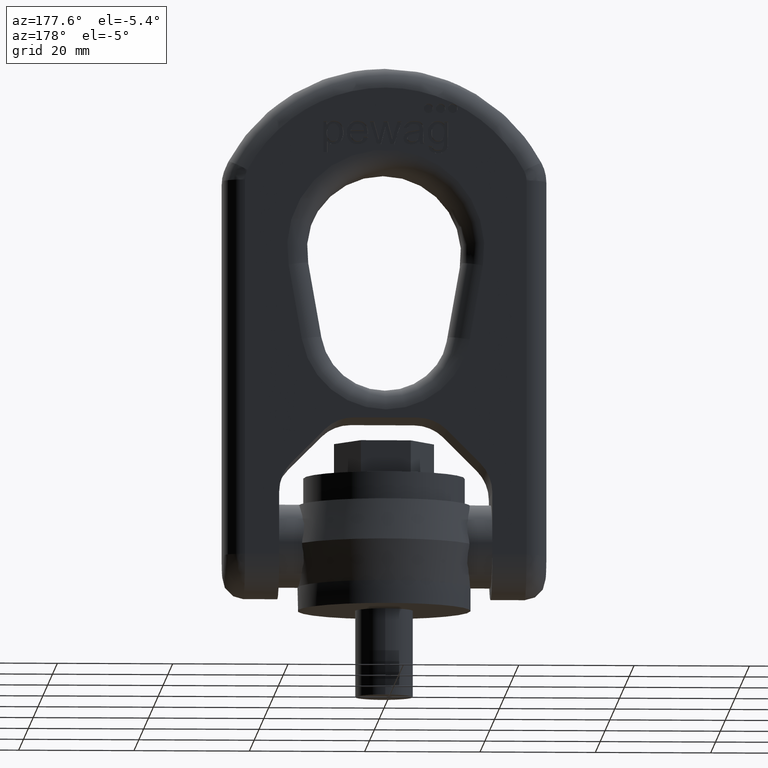
[diagram: clean part render]
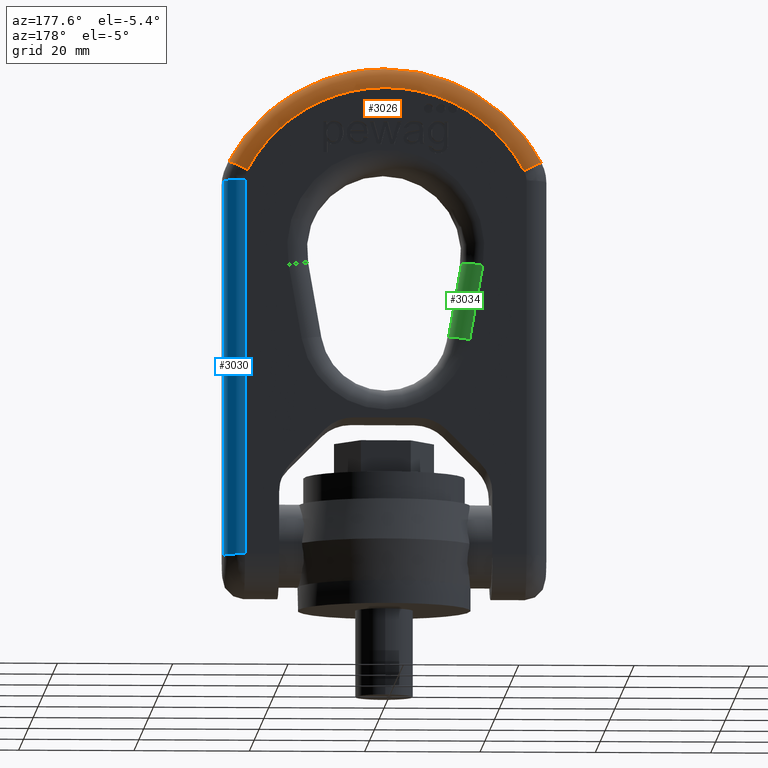
[diagram: same view with three faces highlighted in distinct colors, each labeled with its STEP entity id]
A machine part, auxiliary view with three faces highlighted in distinct colors.
Their STEP definitions:

[orange] entity #3026 — the highlighted toroidal blend (fillet) surface has major radius 27.1778 mm and minor (blend) radius 3.6 mm.
#202=TOROIDAL_SURFACE('',#6041,27.1777777777778,3.6);
#2651=FACE_OUTER_BOUND('',#3419,.T.);
#3026=ADVANCED_FACE('',(#2651),#202,.T.);
#3419=EDGE_LOOP('',(#4641,#4642,#4643,#4644));
#4641=ORIENTED_EDGE('',*,*,#5734,.T.);
#4642=ORIENTED_EDGE('',*,*,#5369,.F.);
#4643=ORIENTED_EDGE('',*,*,#5736,.F.);
#4644=ORIENTED_EDGE('',*,*,#5280,.F.);
#4831=VERTEX_POINT('',#7404);
#4841=VERTEX_POINT('',#7426);
#4928=VERTEX_POINT('',#7762);
#4929=VERTEX_POINT('',#7764);
#5280=EDGE_CURVE('',#4841,#4831,#5783,.T.);
#5369=EDGE_CURVE('',#4928,#4929,#5791,.T.);
#5734=EDGE_CURVE('',#4841,#4929,#5812,.T.);
#5736=EDGE_CURVE('',#4831,#4928,#5814,.T.);
#5783=CIRCLE('',#5890,27.1777777777778);
#5791=CIRCLE('',#5904,30.7777777777778);
#5812=CIRCLE('',#6037,3.6);
#5814=CIRCLE('',#6040,3.6);
#5890=AXIS2_PLACEMENT_3D('',#7427,#6285,#6286);
#5904=AXIS2_PLACEMENT_3D('',#7763,#6360,#6361);
#6037=AXIS2_PLACEMENT_3D('',#9754,#6882,#6883);
#6040=AXIS2_PLACEMENT_3D('',#9773,#6888,#6889);
#6041=AXIS2_PLACEMENT_3D('',#9774,#6890,#6891);
#6285=DIRECTION('',(2.34291072916505E-15,1.,0.));
#6286=DIRECTION('',(-1.,2.32974923081922E-15,0.));
#6360=DIRECTION('',(-2.34291072916505E-15,-1.,0.));
#6361=DIRECTION('',(-1.,2.33905854973768E-15,0.));
#6882=DIRECTION('',(0.470899961611151,-9.07645798048268E-16,0.882186616399623));
#6883=DIRECTION('',(0.882186616399624,0.,-0.470899961611152));
#6888=DIRECTION('',(0.470899961611152,-9.07645798048269E-16,-0.882186616399623));
#6889=DIRECTION('',(-0.882186616399623,0.,-0.470899961611152));
#6890=DIRECTION('',(2.34291072916505E-15,1.,0.));
#6891=DIRECTION('',(-1.,2.33905854973768E-15,0.));
#7404=CARTESIAN_POINT('',(23.9758718190387,7.19999999999994,76.0202367344542));
#7426=CARTESIAN_POINT('',(-23.9758718190386,7.20000000000006,76.0202367344542));
#7427=CARTESIAN_POINT('',(8.43447862499418E-15,7.2,63.2222222222222));
#7762=CARTESIAN_POINT('',(27.1517436380773,3.59999999999993,77.7154765962543));
#7763=CARTESIAN_POINT('',(0.,3.59999999999999,63.2222222222222));
#7764=CARTESIAN_POINT('',(-27.1517436380773,3.60000000000006,77.7154765962543));
#9754=CARTESIAN_POINT('',(-23.9758718190386,3.60000000000006,76.0202367344542));
#9773=CARTESIAN_POINT('',(23.9758718190387,3.59999999999994,76.0202367344542));
#9774=CARTESIAN_POINT('',(0.,3.6,63.2222222222222));

[blue] entity #3030 — the highlighted cylindrical surface (edge-blend (fillet) strip) has radius 3.6 mm, axis along (-0, 0, 1).
#1817=LINE('',#7406,#2125);
#1867=LINE('',#7754,#2175);
#2125=VECTOR('',#6268,1.);
#2175=VECTOR('',#6354,1.);
#2655=FACE_OUTER_BOUND('',#3423,.T.);
#3030=ADVANCED_FACE('',(#2655),#3064,.T.);
#3064=CYLINDRICAL_SURFACE('',#6047,3.6);
#3423=EDGE_LOOP('',(#4657,#4658,#4659,#4660));
#4657=ORIENTED_EDGE('',*,*,#5738,.T.);
#4658=ORIENTED_EDGE('',*,*,#5365,.F.);
#4659=ORIENTED_EDGE('',*,*,#5740,.F.);
#4660=ORIENTED_EDGE('',*,*,#5268,.F.);
#4741=VERTEX_POINT('',#7064);
#4832=VERTEX_POINT('',#7405);
#4924=VERTEX_POINT('',#7753);
#4925=VERTEX_POINT('',#7755);
#5268=EDGE_CURVE('',#4832,#4741,#1817,.T.);
#5365=EDGE_CURVE('',#4924,#4925,#1867,.T.);
#5738=EDGE_CURVE('',#4832,#4925,#5816,.T.);
#5740=EDGE_CURVE('',#4741,#4924,#5818,.T.);
#5816=CIRCLE('',#6043,3.6);
#5818=CIRCLE('',#6046,3.6);
#6043=AXIS2_PLACEMENT_3D('',#9792,#6894,#6895);
#6046=AXIS2_PLACEMENT_3D('',#9811,#6900,#6901);
#6047=AXIS2_PLACEMENT_3D('',#9812,#6902,#6903);
#6268=DIRECTION('',(1.4065325480893E-16,-3.29538019783828E-31,-1.));
#6354=DIRECTION('',(-1.4065325480893E-16,3.29538019783828E-31,1.));
#6894=DIRECTION('',(0.,0.,-1.));
#6895=DIRECTION('',(-1.,0.,0.));
#6900=DIRECTION('',(0.,0.,-1.));
#6901=DIRECTION('',(-1.,0.,0.));
#6902=DIRECTION('',(-1.4065325480893E-16,3.29538019783828E-31,1.));
#6903=DIRECTION('',(1.,0.,0.));
#7064=CARTESIAN_POINT('',(24.4,7.19999999999994,9.19999999999997));
#7405=CARTESIAN_POINT('',(24.4,7.19999999999994,74.324996872654));
#7406=CARTESIAN_POINT('',(24.4,7.19999999999994,9.19999999999997));
#7753=CARTESIAN_POINT('',(28.,3.59999999999994,9.19999999999997));
#7754=CARTESIAN_POINT('',(28.,3.59999999999994,74.324996872654));
#7755=CARTESIAN_POINT('',(28.,3.59999999999994,74.324996872654));
#9792=CARTESIAN_POINT('',(24.4,3.59999999999994,74.324996872654));
#9811=CARTESIAN_POINT('',(24.4,3.59999999999994,9.19999999999997));
#9812=CARTESIAN_POINT('',(24.4,3.59999999999994,63.2222222222222));

[green] entity #3034 — the highlighted cylindrical surface (edge-blend (fillet) strip) has radius 3.6 mm, axis along (-0.1736, 0, 0.9848).
#1816=LINE('',#7400,#2124);
#1857=LINE('',#7724,#2165);
#2124=VECTOR('',#6263,1.);
#2165=VECTOR('',#6328,1.);
#2659=FACE_OUTER_BOUND('',#3427,.T.);
#3034=ADVANCED_FACE('',(#2659),#3066,.T.);
#3066=CYLINDRICAL_SURFACE('',#6054,3.6);
#3427=EDGE_LOOP('',(#4673,#4674,#4675,#4676));
#4673=ORIENTED_EDGE('',*,*,#5741,.T.);
#4674=ORIENTED_EDGE('',*,*,#5265,.F.);
#4675=ORIENTED_EDGE('',*,*,#5744,.F.);
#4676=ORIENTED_EDGE('',*,*,#5351,.F.);
#4829=VERTEX_POINT('',#7399);
#4830=VERTEX_POINT('',#7401);
#4912=VERTEX_POINT('',#7723);
#4913=VERTEX_POINT('',#7725);
#5265=EDGE_CURVE('',#4829,#4830,#1816,.T.);
#5351=EDGE_CURVE('',#4912,#4913,#1857,.T.);
#5741=EDGE_CURVE('',#4912,#4830,#5819,.T.);
#5744=EDGE_CURVE('',#4913,#4829,#5822,.T.);
#5819=CIRCLE('',#6048,3.6);
#5822=CIRCLE('',#6053,3.6);
#6048=AXIS2_PLACEMENT_3D('',#9829,#6904,#6905);
#6053=AXIS2_PLACEMENT_3D('',#9834,#6914,#6915);
#6054=AXIS2_PLACEMENT_3D('',#9835,#6916,#6917);
#6263=DIRECTION('',(0.173648177666931,-4.0684217855581E-16,-0.984807753012208));
#6328=DIRECTION('',(-0.173648177666931,4.0684217855581E-16,0.984807753012208));
#6904=DIRECTION('',(-0.173648177666929,4.18377181054742E-16,0.984807753012208));
#6905=DIRECTION('',(0.984807753012208,0.,0.173648177666929));
#6914=DIRECTION('',(-0.173648177666931,-1.56348617568314E-15,0.984807753012208));
#6915=DIRECTION('',(0.984807753012208,0.,0.173648177666931));
#6916=DIRECTION('',(-0.173648177666931,4.0684217855581E-16,0.984807753012208));
#6917=DIRECTION('',(0.984807753012208,0.,0.173648177666931));
#7399=CARTESIAN_POINT('',(-16.8402125765088,7.20000000000004,59.5306161618955));
#7400=CARTESIAN_POINT('',(-14.5638083411067,7.20000000000003,46.6204862075592));
#7401=CARTESIAN_POINT('',(-14.5638083411067,7.20000000000003,46.6204862075592));
#7723=CARTESIAN_POINT('',(-11.0185004302628,3.60000000000003,47.2456196471602));
#7724=CARTESIAN_POINT('',(-13.2949046656648,3.60000000000004,60.1557496014964));
#7725=CARTESIAN_POINT('',(-13.2949046656648,3.60000000000004,60.1557496014964));
#9829=CARTESIAN_POINT('',(-14.5638083411067,3.60000000000003,46.6204862075592));
#9834=CARTESIAN_POINT('',(-16.8402125765088,3.60000000000004,59.5306161618955));
#9835=CARTESIAN_POINT('',(-16.9637198504875,3.60000000000004,60.2310607194015));